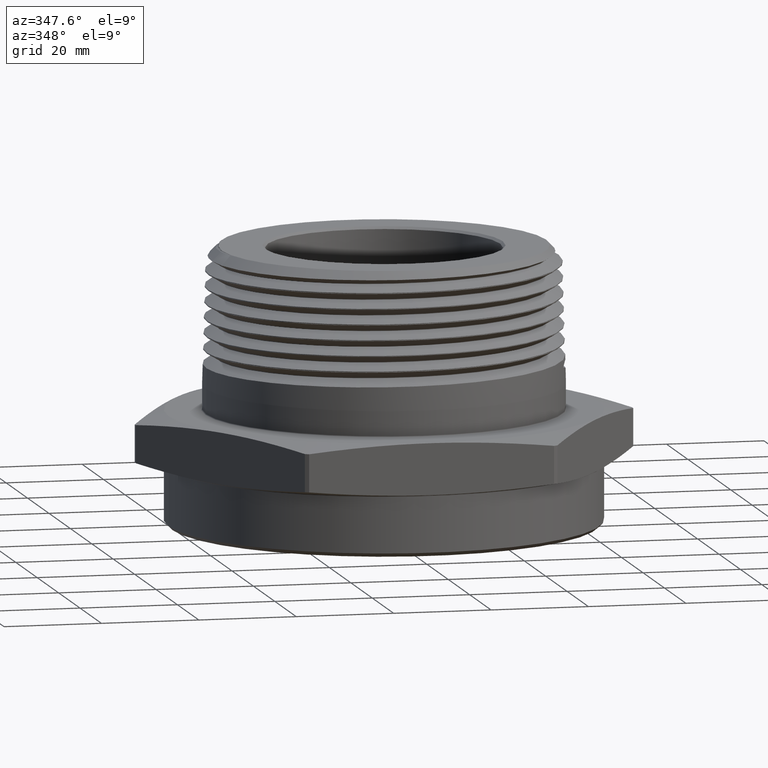
[diagram: clean part render]
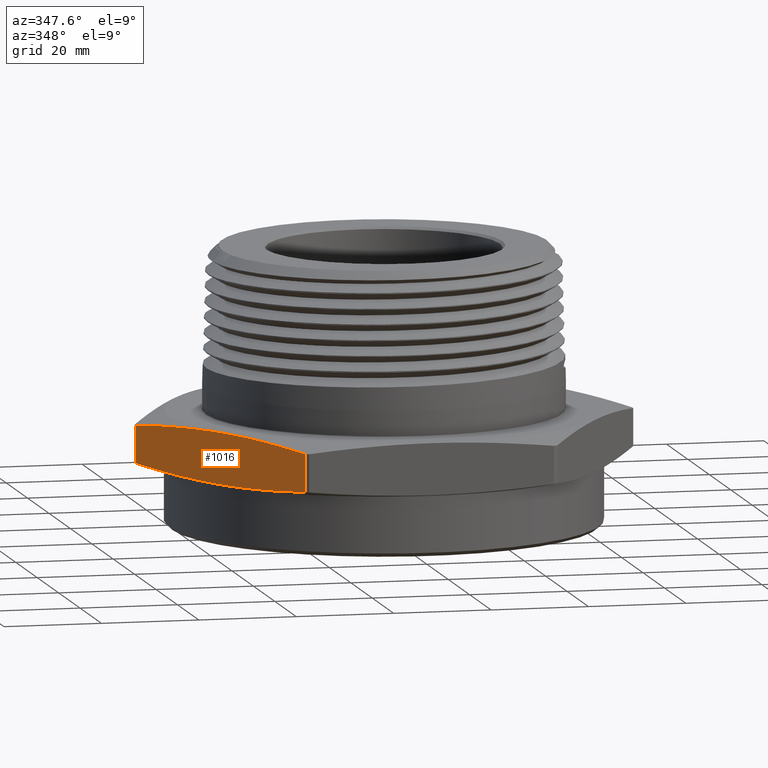
[diagram: same view with one face highlighted and labeled with its STEP entity id]
A machine part, auxiliary view. The second image highlights one B-rep face of the part: STEP entity #1016.
In plain terms, the highlighted planar face has unit normal (0.866, 0.5, 0).
Its self-contained STEP definition (entity closure, byte-faithful):
#135 = AXIS2_PLACEMENT_3D ( 'NONE', #3633, #3638, #3639 ) ;
#950 = LINE ( 'NONE', #5743, #965 ) ;
#953 = LINE ( 'NONE', #5718, #955 ) ;
#955 = VECTOR ( 'NONE', #5719, 39.37007874015748100 ) ;
#965 = VECTOR ( 'NONE', #5737, 39.37007874015748100 ) ;
#1016 = ADVANCED_FACE ( 'NONE', ( #2720 ), #3632, .F. ) ;
#2720 = FACE_OUTER_BOUND ( 'NONE', #8043, .T. ) ;
#3050 = EDGE_CURVE ( 'NONE', #8071, #6426, #6504, .T. ) ;
#3055 = EDGE_CURVE ( 'NONE', #6428, #7982, #6536, .T. ) ;
#3632 = PLANE ( 'NONE',  #135 ) ;
#3633 = CARTESIAN_POINT ( 'NONE',  ( -2.020725942163690300, -2.720266447606314200E-016, 0.4199999999999999800 ) ) ;
#3638 = DIRECTION ( 'NONE',  ( 0.8660254037844386000, 0.5000000000000003300, -0.0000000000000000000 ) ) ;
#3639 = DIRECTION ( 'NONE',  ( -0.5000000000000002200, 0.8660254037844384900, 0.0000000000000000000 ) ) ;
#4354 = CARTESIAN_POINT ( 'NONE',  ( -1.185473956663531100, -1.446698876009058700, 0.3937244125843981100 ) ) ;
#4357 = CARTESIAN_POINT ( 'NONE',  ( -1.102956331673722100, -1.589623595011322700, 0.3797307531463373100 ) ) ;
#4359 = CARTESIAN_POINT ( 'NONE',  ( -1.020438706683912900, -1.732548314013587300, 0.3624554245788103000 ) ) ;
#4360 = CARTESIAN_POINT ( 'NONE',  ( -1.350509206643149200, -1.160849438004529100, 0.4128238579427704300 ) ) ;
#4361 = CARTESIAN_POINT ( 'NONE',  ( -1.515544456622767800, -0.8750000000000001100, 0.4229250108238288800 ) ) ;
#4362 = CARTESIAN_POINT ( 'NONE',  ( -1.680579706602386200, -0.5891505619954715600, 0.4128238579427704300 ) ) ;
#4363 = CARTESIAN_POINT ( 'NONE',  ( -1.845614956582003700, -0.3033011239909425600, 0.3937244125843981100 ) ) ;
#4364 = CARTESIAN_POINT ( 'NONE',  ( -1.928132581571813100, -0.1603764049886777000, 0.3797307531463373100 ) ) ;
#4365 = CARTESIAN_POINT ( 'NONE',  ( -2.010650206561621600, -0.01745168598641347300, 0.3624554245788104700 ) ) ;
#4394 = CARTESIAN_POINT ( 'NONE',  ( -1.928132581571813100, -0.1603764049886780000, 0.04026924685366262800 ) ) ;
#4396 = CARTESIAN_POINT ( 'NONE',  ( -1.845614956582003900, -0.3033011239909426700, 0.02627558741560173700 ) ) ;
#4405 = CARTESIAN_POINT ( 'NONE',  ( -2.010650206561621600, -0.01745168598641347300, 0.05754457542118947300 ) ) ;
#4407 = CARTESIAN_POINT ( 'NONE',  ( -1.680579706602385300, -0.5891505619954715600, 0.007176142057229378300 ) ) ;
#4408 = CARTESIAN_POINT ( 'NONE',  ( -1.515544456622768300, -0.8750000000000002200, -0.002925010823829088700 ) ) ;
#4409 = CARTESIAN_POINT ( 'NONE',  ( -1.350509206643149900, -1.160849438004530000, 0.007176142057229363500 ) ) ;
#4410 = CARTESIAN_POINT ( 'NONE',  ( -1.185473956663531500, -1.446698876009058900, 0.02627558741560171600 ) ) ;
#4411 = CARTESIAN_POINT ( 'NONE',  ( -1.102956331673722800, -1.589623595011323600, 0.04026924685366249000 ) ) ;
#4412 = CARTESIAN_POINT ( 'NONE',  ( -1.020438706683912900, -1.732548314013587300, 0.05754457542118934800 ) ) ;
#4456 = CARTESIAN_POINT ( 'NONE',  ( -2.010650206561621600, -0.01745168598641347300, 0.3624554245788104700 ) ) ;
#4458 = CARTESIAN_POINT ( 'NONE',  ( -2.010650206561621600, -0.01745168598641347300, 0.05754457542118947300 ) ) ;
#5718 = CARTESIAN_POINT ( 'NONE',  ( -2.010650206561621600, -0.01745168598641347300, 6.213510559871393800E-017 ) ) ;
#5719 = DIRECTION ( 'NONE',  ( -1.254986547952384500E-016, -0.0000000000000000000, -1.000000000000000000 ) ) ;
#5737 = DIRECTION ( 'NONE',  ( 1.254986547952384500E-016, 0.0000000000000000000, 1.000000000000000000 ) ) ;
#5743 = CARTESIAN_POINT ( 'NONE',  ( -1.020438706683912900, -1.732548314013587300, -6.213510559871393800E-017 ) ) ;
#5798 = CARTESIAN_POINT ( 'NONE',  ( -1.020438706683912900, -1.732548314013587300, 0.05754457542118934800 ) ) ;
#5805 = CARTESIAN_POINT ( 'NONE',  ( -1.020438706683912900, -1.732548314013587300, 0.3624554245788103000 ) ) ;
#6426 = VERTEX_POINT ( 'NONE', #4456 ) ;
#6428 = VERTEX_POINT ( 'NONE', #4458 ) ;
#6504 = B_SPLINE_CURVE_WITH_KNOTS ( 'NONE', 3,
 ( #4359, #4357, #4354, #4360, #4361, #4362, #4363, #4364, #4365 ),
 .UNSPECIFIED., .F., .F.,
 ( 4, 2, 1, 2, 4 ),
 ( 1.910591760024169400E-006, 0.01257759664020692200, 0.02515328268865382000, 0.03772896873710071500, 0.05030465478554761700 ),
 .UNSPECIFIED. ) ;
#6536 = B_SPLINE_CURVE_WITH_KNOTS ( 'NONE', 3,
 ( #4405, #4394, #4396, #4407, #4408, #4409, #4410, #4411, #4412 ),
 .UNSPECIFIED., .F., .F.,
 ( 4, 2, 1, 2, 4 ),
 ( 1.910591760097524600E-006, 0.01257759664020699800, 0.02515328268865389700, 0.03772896873710079900, 0.05030465478554768700 ),
 .UNSPECIFIED. ) ;
#6553 = EDGE_CURVE ( 'NONE', #6426, #6428, #953, .T. ) ;
#6560 = EDGE_CURVE ( 'NONE', #7982, #8071, #950, .T. ) ;
#7945 = ORIENTED_EDGE ( 'NONE', *, *, #3055, .T. ) ;
#7946 = ORIENTED_EDGE ( 'NONE', *, *, #6560, .T. ) ;
#7947 = ORIENTED_EDGE ( 'NONE', *, *, #3050, .T. ) ;
#7948 = ORIENTED_EDGE ( 'NONE', *, *, #6553, .T. ) ;
#7982 = VERTEX_POINT ( 'NONE', #5798 ) ;
#8043 = EDGE_LOOP ( 'NONE', ( #7945, #7946, #7947, #7948 ) ) ;
#8071 = VERTEX_POINT ( 'NONE', #5805 ) ;